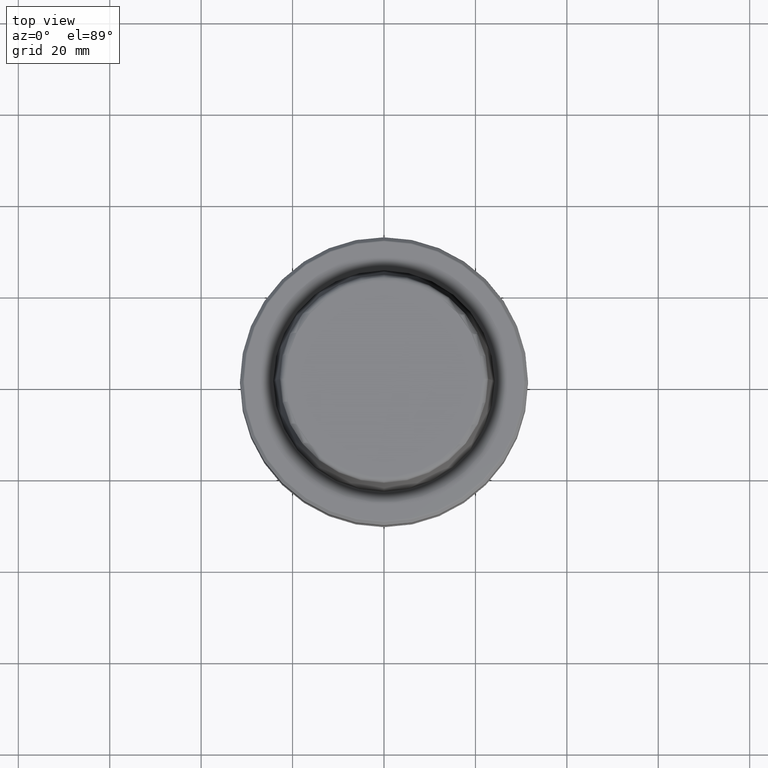
[diagram: clean part render]
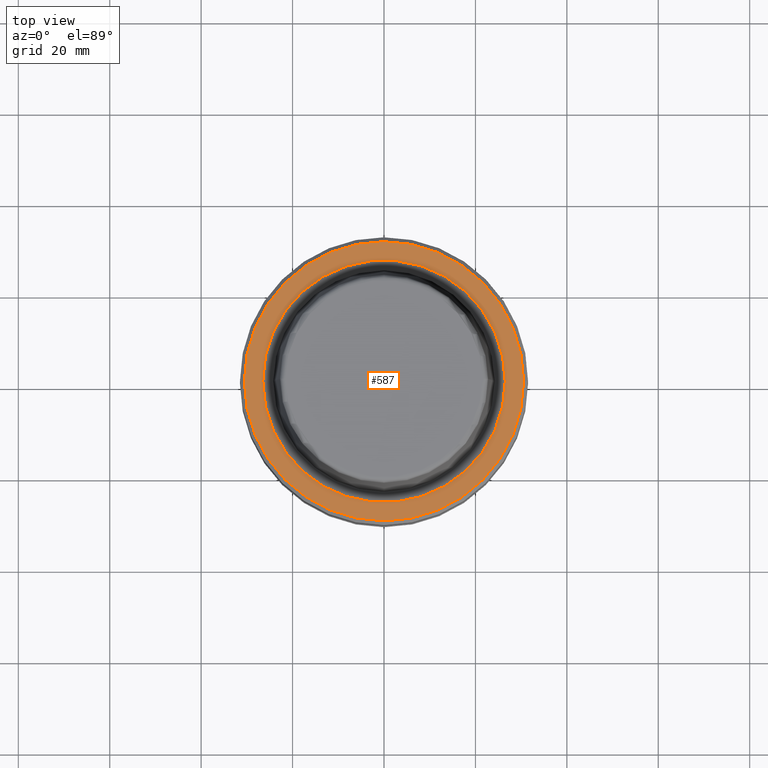
[diagram: same view with one face highlighted and labeled with its STEP entity id]
A machine part, top view. The second image highlights one B-rep face of the part: STEP entity #587.
In plain terms, the highlighted planar face has unit normal (0, 0, -1).
Its self-contained STEP definition (entity closure, byte-faithful):
#6 = CARTESIAN_POINT ( 'NONE',  ( -30.53431457505076100, 3.756694181974138600E-015, 0.0000000000000000000 ) ) ;
#56 = DIRECTION ( 'NONE',  ( 0.0000000000000000000, 0.0000000000000000000, -1.000000000000000000 ) ) ;
#65 = CARTESIAN_POINT ( 'NONE',  ( 30.53431457505076100, 0.0000000000000000000, 0.0000000000000000000 ) ) ;
#75 = ORIENTED_EDGE ( 'NONE', *, *, #278, .T. ) ;
#159 = DIRECTION ( 'NONE',  ( 1.000000000000000000, 0.0000000000000000000, 0.0000000000000000000 ) ) ;
#168 = VERTEX_POINT ( 'NONE', #6 ) ;
#186 = DIRECTION ( 'NONE',  ( 1.000000000000000000, 0.0000000000000000000, 0.0000000000000000000 ) ) ;
#245 = FACE_OUTER_BOUND ( 'NONE', #1053, .T. ) ;
#251 = ORIENTED_EDGE ( 'NONE', *, *, #336, .T. ) ;
#263 = CARTESIAN_POINT ( 'NONE',  ( 0.0000000000000000000, 0.0000000000000000000, 0.0000000000000000000 ) ) ;
#278 = EDGE_CURVE ( 'NONE', #168, #731, #389, .T. ) ;
#308 = CIRCLE ( 'NONE', #990, 26.52499999999999900 ) ;
#319 = EDGE_CURVE ( 'NONE', #345, #653, #493, .T. ) ;
#336 = EDGE_CURVE ( 'NONE', #731, #168, #583, .T. ) ;
#345 = VERTEX_POINT ( 'NONE', #1131 ) ;
#372 = DIRECTION ( 'NONE',  ( 1.000000000000000000, 0.0000000000000000000, 0.0000000000000000000 ) ) ;
#375 = CARTESIAN_POINT ( 'NONE',  ( 0.0000000000000000000, 26.52499999999999900, -1.111307226797642000E-015 ) ) ;
#389 = CIRCLE ( 'NONE', #1063, 30.53431457505076100 ) ;
#493 = CIRCLE ( 'NONE', #1202, 26.52499999999999900 ) ;
#583 = CIRCLE ( 'NONE', #1249, 30.53431457505076100 ) ;
#587 = ADVANCED_FACE ( 'NONE', ( #602, #245 ), #1029, .F. ) ;
#602 = FACE_BOUND ( 'NONE', #1227, .T. ) ;
#628 = AXIS2_PLACEMENT_3D ( 'NONE', #375, #56, #737 ) ;
#653 = VERTEX_POINT ( 'NONE', #1211 ) ;
#681 = DIRECTION ( 'NONE',  ( -0.0000000000000000000, -0.0000000000000000000, 1.000000000000000000 ) ) ;
#731 = VERTEX_POINT ( 'NONE', #65 ) ;
#737 = DIRECTION ( 'NONE',  ( -1.000000000000000000, 0.0000000000000000000, -0.0000000000000000000 ) ) ;
#756 = DIRECTION ( 'NONE',  ( -0.0000000000000000000, -0.0000000000000000000, 1.000000000000000000 ) ) ;
#832 = EDGE_CURVE ( 'NONE', #653, #345, #308, .T. ) ;
#851 = CARTESIAN_POINT ( 'NONE',  ( 0.0000000000000000000, 0.0000000000000000000, 0.0000000000000000000 ) ) ;
#946 = DIRECTION ( 'NONE',  ( -0.0000000000000000000, -0.0000000000000000000, 1.000000000000000000 ) ) ;
#951 = ORIENTED_EDGE ( 'NONE', *, *, #319, .F. ) ;
#990 = AXIS2_PLACEMENT_3D ( 'NONE', #263, #1049, #372 ) ;
#1029 = PLANE ( 'NONE',  #628 ) ;
#1049 = DIRECTION ( 'NONE',  ( -0.0000000000000000000, -0.0000000000000000000, 1.000000000000000000 ) ) ;
#1053 = EDGE_LOOP ( 'NONE', ( #251, #75 ) ) ;
#1063 = AXIS2_PLACEMENT_3D ( 'NONE', #851, #756, #159 ) ;
#1131 = CARTESIAN_POINT ( 'NONE',  ( 26.52499999999999900, 0.0000000000000000000, 0.0000000000000000000 ) ) ;
#1156 = DIRECTION ( 'NONE',  ( 1.000000000000000000, 0.0000000000000000000, 0.0000000000000000000 ) ) ;
#1163 = ORIENTED_EDGE ( 'NONE', *, *, #832, .F. ) ;
#1202 = AXIS2_PLACEMENT_3D ( 'NONE', #1254, #681, #1156 ) ;
#1211 = CARTESIAN_POINT ( 'NONE',  ( -26.52499999999999900, 3.248375634738354300E-015, 0.0000000000000000000 ) ) ;
#1227 = EDGE_LOOP ( 'NONE', ( #951, #1163 ) ) ;
#1249 = AXIS2_PLACEMENT_3D ( 'NONE', #1261, #946, #186 ) ;
#1254 = CARTESIAN_POINT ( 'NONE',  ( 0.0000000000000000000, 0.0000000000000000000, 0.0000000000000000000 ) ) ;
#1261 = CARTESIAN_POINT ( 'NONE',  ( 0.0000000000000000000, 0.0000000000000000000, 0.0000000000000000000 ) ) ;